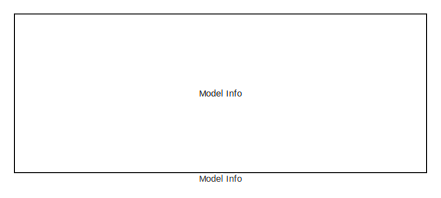
[diagram: root canvas - part 1/3, top center region]
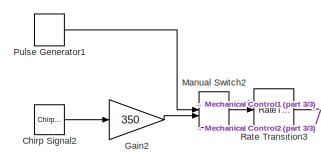
[diagram: root canvas - part 2/3, middle left region]
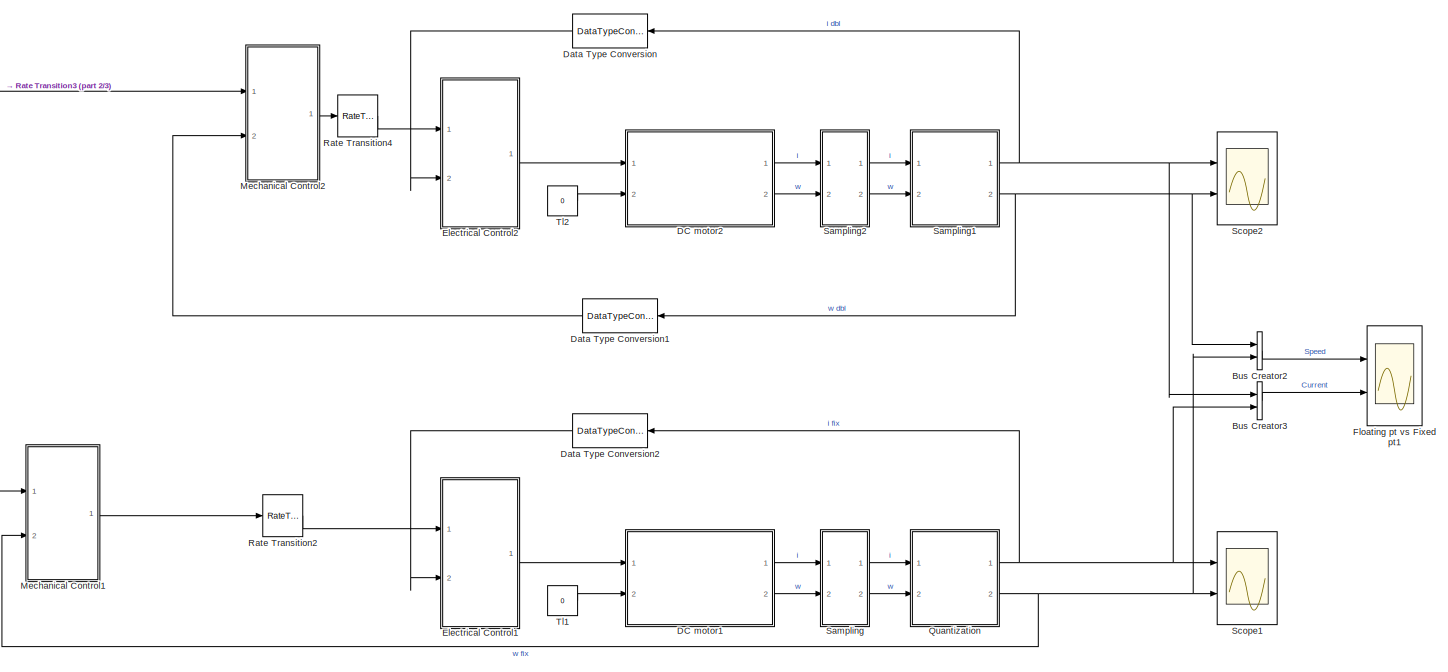
[diagram: root canvas - part 3/3, full width, middle band]
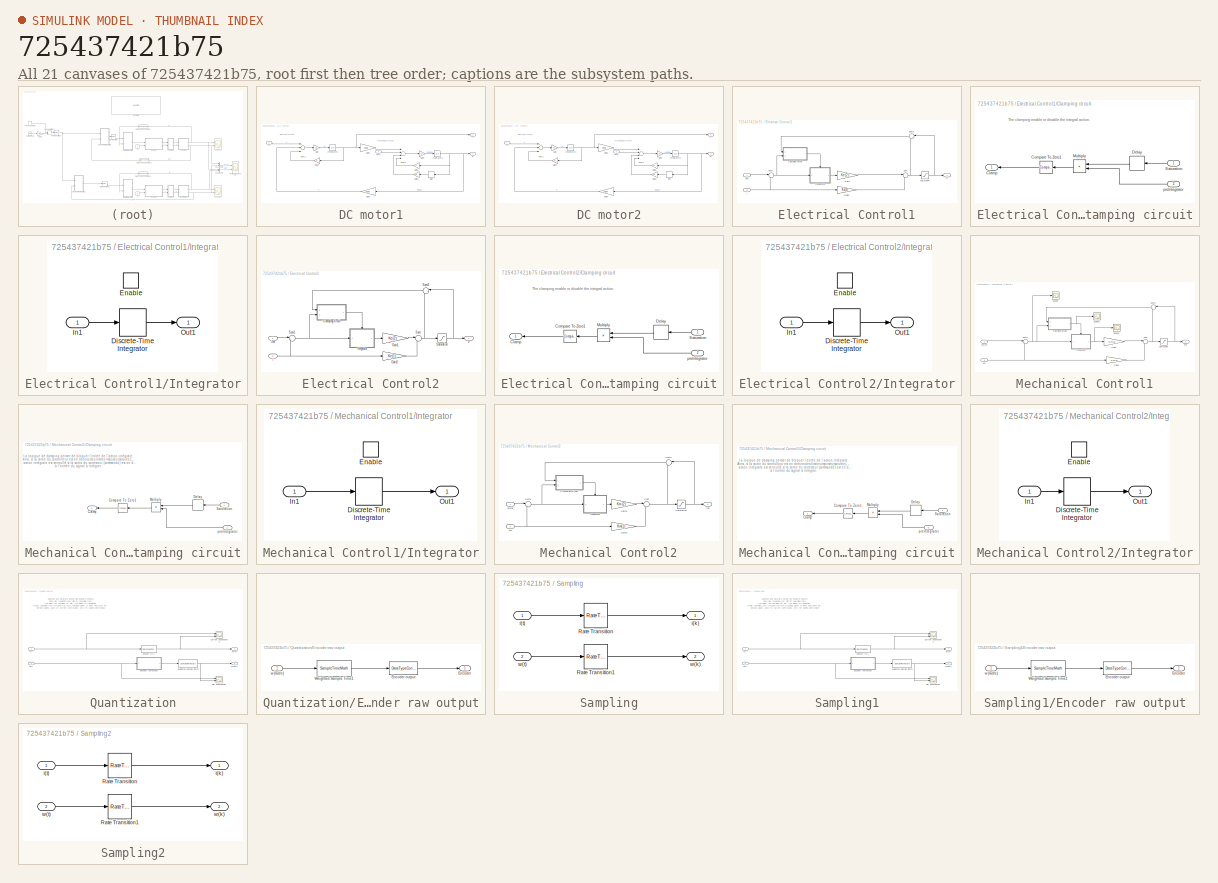
[diagram: thumbnail index - all 21 canvases of the model, root first then tree order]
MODEL slx_725437421b75
KIND model
CONFIG AbsTol = auto
CONFIG EnableMultiTasking = off
CONFIG FixedStep = auto
CONFIG MaxStep = Ts
CONFIG MinStep = auto
CONFIG RelTol = 1e-3
CONFIG SampleTimeConstraint = Unconstrained
CONFIG Solver = VariableStepAuto
CONFIG SolverName = VariableStepAuto
CONFIG StartTime = 0.0
CONFIG StopTime = 25
BLOCK [BusCreator] Bus Creator2
  DisplayOption = bar
  InheritFromInputs = on
  Inputs = 2
  Ports = [2, 1]
BLOCK [BusCreator] Bus Creator3
  DisplayOption = bar
  InheritFromInputs = on
  Inputs = 2
  Ports = [2, 1]
BLOCK [Reference] Chirp Signal2  REF=simulink/Sources/Chirp Signal
  Ports = [0, 1]
  SourceBlock = simulink/Sources/Chirp Signal
  SourceProductBaseCode = SL
  SourceProductName = Simulink
  SourceType = chirp
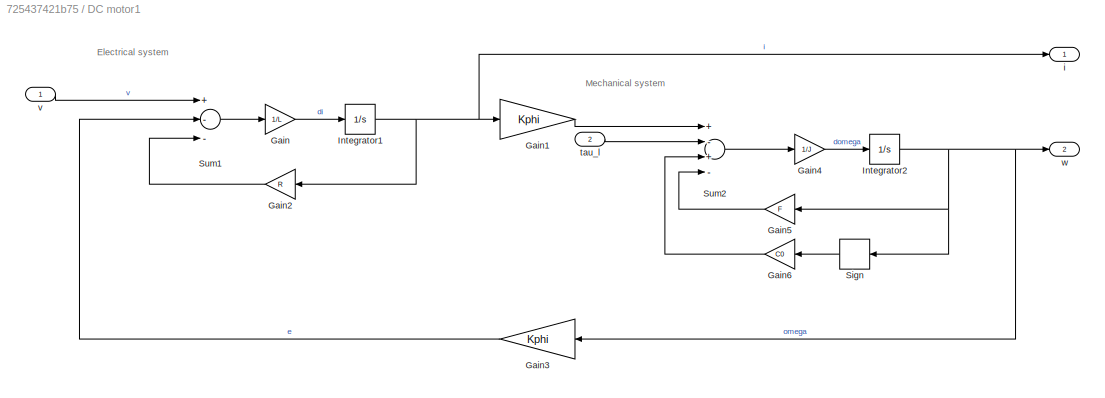
BLOCK [SubSystem] DC motor1
  Ports = [2, 2]
  RequestExecContextInheritance = off
BLOCK [Gain] DC motor1/Gain
  Gain = 1/L
  OutDataTypeStr = Inherit: Inherit via internal rule
  ParamDataTypeStr = Inherit: Inherit via internal rule
  SaturateOnIntegerOverflow = off
BLOCK [Gain] DC motor1/Gain1
  Gain = Kphi
  OutDataTypeStr = Inherit: Inherit via internal rule
  ParamDataTypeStr = Inherit: Inherit via internal rule
  SaturateOnIntegerOverflow = off
BLOCK [Gain] DC motor1/Gain2
  Gain = R
  OutDataTypeStr = Inherit: Inherit via internal rule
  ParamDataTypeStr = Inherit: Inherit via internal rule
  SaturateOnIntegerOverflow = off
BLOCK [Gain] DC motor1/Gain3  
  Gain = Kphi
  OutDataTypeStr = Inherit: Inherit via internal rule
  ParamDataTypeStr = Inherit: Inherit via internal rule
  SaturateOnIntegerOverflow = off
BLOCK [Gain] DC motor1/Gain4
  Gain = 1/J
  OutDataTypeStr = Inherit: Inherit via internal rule
  ParamDataTypeStr = Inherit: Inherit via internal rule
  SaturateOnIntegerOverflow = off
BLOCK [Gain] DC motor1/Gain5
  Gain = F
  OutDataTypeStr = Inherit: Inherit via internal rule
  ParamDataTypeStr = Inherit: Inherit via internal rule
  SaturateOnIntegerOverflow = off
BLOCK [Gain] DC motor1/Gain6
  Gain = C0
  OutDataTypeStr = Inherit: Inherit via internal rule
  ParamDataTypeStr = Inherit: Inherit via internal rule
  SaturateOnIntegerOverflow = off
BLOCK [Integrator] DC motor1/Integrator1
  Ports = [1, 1]
BLOCK [Integrator] DC motor1/Integrator2
  Ports = [1, 1]
BLOCK [Signum] DC motor1/Sign
BLOCK [Sum] DC motor1/Sum1
  InputSameDT = off
  Inputs = +--
  OutDataTypeStr = Inherit: Inherit via internal rule
  Ports = [3, 1]
  SaturateOnIntegerOverflow = off
BLOCK [Sum] DC motor1/Sum2
  InputSameDT = off
  Inputs = +-+-
  OutDataTypeStr = Inherit: Inherit via internal rule
  Ports = [4, 1]
  SaturateOnIntegerOverflow = off
BLOCK [Outport] DC motor1/i
  IconDisplay = Port number
BLOCK [Inport] DC motor1/tau_l
  IconDisplay = Port number
  Port = 2
BLOCK [Inport] DC motor1/v
  IconDisplay = Port number
  SampleTime = 0
BLOCK [Outport] DC motor1/w
  IconDisplay = Port number
  Port = 2
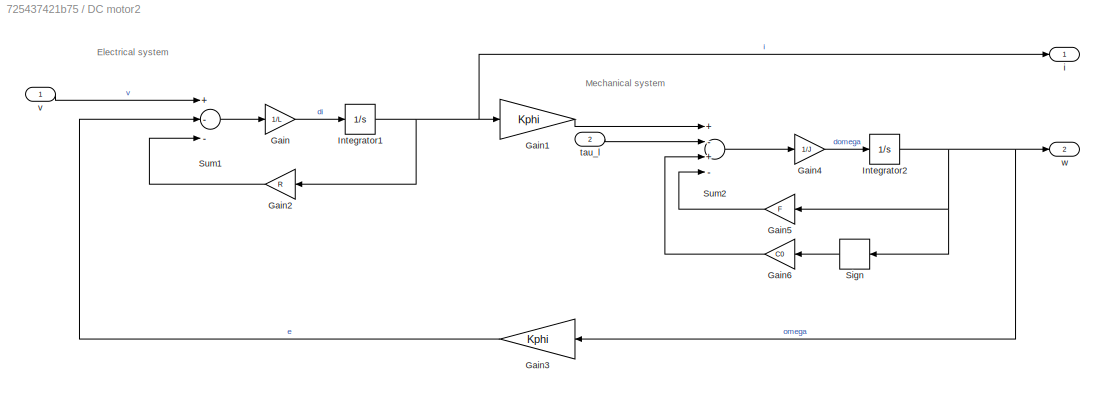
BLOCK [SubSystem] DC motor2
  Ports = [2, 2]
  RequestExecContextInheritance = off
BLOCK [Gain] DC motor2/Gain
  Gain = 1/L
  OutDataTypeStr = Inherit: Inherit via internal rule
  ParamDataTypeStr = Inherit: Inherit via internal rule
  SaturateOnIntegerOverflow = off
BLOCK [Gain] DC motor2/Gain1
  Gain = Kphi
  OutDataTypeStr = Inherit: Inherit via internal rule
  ParamDataTypeStr = Inherit: Inherit via internal rule
  SaturateOnIntegerOverflow = off
BLOCK [Gain] DC motor2/Gain2
  Gain = R
  OutDataTypeStr = Inherit: Inherit via internal rule
  ParamDataTypeStr = Inherit: Inherit via internal rule
  SaturateOnIntegerOverflow = off
BLOCK [Gain] DC motor2/Gain3  
  Gain = Kphi
  OutDataTypeStr = Inherit: Inherit via internal rule
  ParamDataTypeStr = Inherit: Inherit via internal rule
  SaturateOnIntegerOverflow = off
BLOCK [Gain] DC motor2/Gain4
  Gain = 1/J
  OutDataTypeStr = Inherit: Inherit via internal rule
  ParamDataTypeStr = Inherit: Inherit via internal rule
  SaturateOnIntegerOverflow = off
BLOCK [Gain] DC motor2/Gain5
  Gain = F
  OutDataTypeStr = Inherit: Inherit via internal rule
  ParamDataTypeStr = Inherit: Inherit via internal rule
  SaturateOnIntegerOverflow = off
BLOCK [Gain] DC motor2/Gain6
  Gain = C0
  OutDataTypeStr = Inherit: Inherit via internal rule
  ParamDataTypeStr = Inherit: Inherit via internal rule
  SaturateOnIntegerOverflow = off
BLOCK [Integrator] DC motor2/Integrator1
  Ports = [1, 1]
BLOCK [Integrator] DC motor2/Integrator2
  Ports = [1, 1]
BLOCK [Signum] DC motor2/Sign
BLOCK [Sum] DC motor2/Sum1
  InputSameDT = off
  Inputs = +--
  OutDataTypeStr = Inherit: Inherit via internal rule
  Ports = [3, 1]
  SaturateOnIntegerOverflow = off
BLOCK [Sum] DC motor2/Sum2
  InputSameDT = off
  Inputs = +-+-
  OutDataTypeStr = Inherit: Inherit via internal rule
  Ports = [4, 1]
  SaturateOnIntegerOverflow = off
BLOCK [Outport] DC motor2/i
  IconDisplay = Port number
BLOCK [Inport] DC motor2/tau_l
  IconDisplay = Port number
  Port = 2
BLOCK [Inport] DC motor2/v
  IconDisplay = Port number
  SampleTime = 0
BLOCK [Outport] DC motor2/w
  IconDisplay = Port number
  Port = 2
BLOCK [DataTypeConversion] Data Type Conversion
  OutDataTypeStr = double
  RndMeth = Floor
  SaturateOnIntegerOverflow = off
BLOCK [DataTypeConversion] Data Type Conversion1
  OutDataTypeStr = double
  RndMeth = Floor
  SaturateOnIntegerOverflow = off
BLOCK [DataTypeConversion] Data Type Conversion2
  RndMeth = Floor
  SaturateOnIntegerOverflow = off
BLOCK [SubSystem] Electrical Control1
  Ports = [2, 1]
  RequestExecContextInheritance = off
BLOCK [SubSystem] Electrical Control1/Clamping circuit
  Ports = [2, 1]
  RequestExecContextInheritance = off
BLOCK [Outport] Electrical Control1/Clamping circuit/Clamp
  DisableCoverage = on
  IconDisplay = Port number
BLOCK [Reference] Electrical Control1/Clamping circuit/Compare To Zero1  REF=simulink/Logic and Bit
Operations/Compare
To Zero
  Ports = [1, 1]
  SourceBlock = simulink/Logic and Bit\nOperations/Compare\nTo Zero
  SourceProductBaseCode = SL
  SourceProductName = Simulink
  SourceType = Compare To Zero
BLOCK [Delay] Electrical Control1/Clamping circuit/Delay
  DelayLength = 1
  InitialCondition = 0
  InputPortMap = u0
  Ports = [1, 1]
BLOCK [Product] Electrical Control1/Clamping circuit/Multiply
  InputSameDT = off
  OutDataTypeStr = Inherit: Inherit via internal rule
  Ports = [2, 1]
  RndMeth = Floor
  SaturateOnIntegerOverflow = off
BLOCK [Inport] Electrical Control1/Clamping circuit/Saturation
  DisableCoverage = on
  IconDisplay = Port number
BLOCK [Inport] Electrical Control1/Clamping circuit/preIntegrator
  DisableCoverage = on
  IconDisplay = Port number
  Port = 2
  VarSizeSig = No
BLOCK [Gain] Electrical Control1/Gain1
  Gain = Ke(2)
  OutDataTypeStr = fixdt(1,16)
  OutMax = [2*Vmax]
  OutMin = [2*Vmin]
  ParamDataTypeStr = Inherit: Inherit via internal rule
  SaturateOnIntegerOverflow = off
BLOCK [Gain] Electrical Control1/Gain2
  Gain = Ke(1)
  OutDataTypeStr = fixdt(1,16)
  OutMax = [2*Vmax]
  OutMin = [2*Vmin]
  ParamDataTypeStr = Inherit: Inherit via internal rule
  SaturateOnIntegerOverflow = off
BLOCK [SubSystem] Electrical Control1/Integrator
  Ports = [1, 1, 1]
  RequestExecContextInheritance = off
BLOCK [DiscreteIntegrator] Electrical Control1/Integrator/Discrete-Time Integrator
  ICPrevOutput = DiscIntNeverNeededParam
  ICPrevScaledInput = DiscIntNeverNeededParam
  InitialConditionSetting = Auto
  OutDataTypeStr = fixdt(1,32)
  OutMax = [2*Imax]
  OutMin = [2*Imin]
  Ports = [1, 1]
  SampleTime = Ts
BLOCK [EnablePort] Electrical Control1/Integrator/Enable
  Ports = []
BLOCK [Inport] Electrical Control1/Integrator/In1
  IconDisplay = Port number
BLOCK [Outport] Electrical Control1/Integrator/Out1
  IconDisplay = Port number
BLOCK [Saturate] Electrical Control1/Saturation
  InputPortMap = u0
  LowerLimit = Vmin
  Ports = [1, 1]
  UpperLimit = Vmax
BLOCK [Sum] Electrical Control1/Sum
  IconShape = round
  InputSameDT = off
  Inputs = |--
  OutDataTypeStr = Inherit: Inherit via internal rule
  Ports = [2, 1]
  SaturateOnIntegerOverflow = off
BLOCK [Sum] Electrical Control1/Sum1
  IconShape = round
  InputSameDT = off
  Inputs = |+-
  OutDataTypeStr = fixdt(1,16)
  OutMax = [2*Imax]
  OutMin = [2*Imin]
  Ports = [2, 1]
  SaturateOnIntegerOverflow = off
BLOCK [Sum] Electrical Control1/Sum2
  AccumDataTypeStr = Inherit: Same as first input
  IconShape = round
  InputSameDT = off
  Inputs = |-+
  OutDataTypeStr = Inherit: Same as accumulator
  Ports = [2, 1]
  SaturateOnIntegerOverflow = off
BLOCK [Inport] Electrical Control1/i
  IconDisplay = Port number
  Port = 2
BLOCK [Inport] Electrical Control1/iref
  IconDisplay = Port number
BLOCK [Outport] Electrical Control1/v
  IconDisplay = Port number
BLOCK [SubSystem] Electrical Control2
  Ports = [2, 1]
  RequestExecContextInheritance = off
BLOCK [SubSystem] Electrical Control2/Clamping circuit
  Ports = [2, 1]
  RequestExecContextInheritance = off
BLOCK [Outport] Electrical Control2/Clamping circuit/Clamp
  DisableCoverage = on
  IconDisplay = Port number
BLOCK [Reference] Electrical Control2/Clamping circuit/Compare To Zero1  REF=simulink/Logic and Bit
Operations/Compare
To Zero
  Ports = [1, 1]
  SourceBlock = simulink/Logic and Bit\nOperations/Compare\nTo Zero
  SourceProductBaseCode = SL
  SourceProductName = Simulink
  SourceType = Compare To Zero
BLOCK [Delay] Electrical Control2/Clamping circuit/Delay
  DelayLength = 1
  InitialCondition = 0
  InputPortMap = u0
  Ports = [1, 1]
BLOCK [Product] Electrical Control2/Clamping circuit/Multiply
  InputSameDT = off
  OutDataTypeStr = Inherit: Inherit via internal rule
  Ports = [2, 1]
  RndMeth = Floor
  SaturateOnIntegerOverflow = off
BLOCK [Inport] Electrical Control2/Clamping circuit/Saturation
  DisableCoverage = on
  IconDisplay = Port number
BLOCK [Inport] Electrical Control2/Clamping circuit/preIntegrator
  DisableCoverage = on
  IconDisplay = Port number
  Port = 2
  VarSizeSig = No
BLOCK [Gain] Electrical Control2/Gain1
  Gain = Ke(2)
  OutDataTypeStr = Inherit: Inherit via internal rule
  ParamDataTypeStr = Inherit: Inherit via internal rule
  SaturateOnIntegerOverflow = off
BLOCK [Gain] Electrical Control2/Gain2
  Gain = Ke(1)
  OutDataTypeStr = Inherit: Inherit via internal rule
  ParamDataTypeStr = Inherit: Inherit via internal rule
  SaturateOnIntegerOverflow = off
BLOCK [SubSystem] Electrical Control2/Integrator
  Ports = [1, 1, 1]
  RequestExecContextInheritance = off
BLOCK [DiscreteIntegrator] Electrical Control2/Integrator/Discrete-Time Integrator
  ICPrevOutput = DiscIntNeverNeededParam
  ICPrevScaledInput = DiscIntNeverNeededParam
  InitialConditionSetting = Auto
  Ports = [1, 1]
  SampleTime = Ts
BLOCK [EnablePort] Electrical Control2/Integrator/Enable
  Ports = []
BLOCK [Inport] Electrical Control2/Integrator/In1
  IconDisplay = Port number
BLOCK [Outport] Electrical Control2/Integrator/Out1
  IconDisplay = Port number
BLOCK [Saturate] Electrical Control2/Saturation
  InputPortMap = u0
  LowerLimit = Vmin
  Ports = [1, 1]
  UpperLimit = Vmax
BLOCK [Sum] Electrical Control2/Sum
  IconShape = round
  InputSameDT = off
  Inputs = |--
  OutDataTypeStr = Inherit: Inherit via internal rule
  Ports = [2, 1]
  SaturateOnIntegerOverflow = off
BLOCK [Sum] Electrical Control2/Sum1
  IconShape = round
  InputSameDT = off
  Inputs = |+-
  OutDataTypeStr = Inherit: Inherit via internal rule
  Ports = [2, 1]
  SaturateOnIntegerOverflow = off
BLOCK [Sum] Electrical Control2/Sum2
  AccumDataTypeStr = Inherit: Same as first input
  IconShape = round
  InputSameDT = off
  Inputs = |-+
  OutDataTypeStr = Inherit: Same as accumulator
  Ports = [2, 1]
  SaturateOnIntegerOverflow = off
BLOCK [Inport] Electrical Control2/i
  IconDisplay = Port number
  Port = 2
BLOCK [Inport] Electrical Control2/iref
  IconDisplay = Port number
BLOCK [Outport] Electrical Control2/v
  IconDisplay = Port number
BLOCK [Scope] Floating pt vs Fixed pt1
  Floating = off
  NumInputPorts = 2
  Ports = [2]
  ScopeSpecificationString = Simulink.scopes.TimeScopeBlockCfg('CurrentConfiguration', extmgr.ConfigurationSet(extmgr.Configuration('Core','General UI',true),extmgr.Configuration('Core','Source UI',true),extmgr.Configuration('Sources','WiredSimulink',true,'DataLoggingVariableName','ScopeData5'),extmgr.Configuration('Visuals','Time Domain',true,'SerializedDisplays',{struct('MinYLimReal','-540.35394','MaxYLimReal','464.95571','...<+2054ch>
BLOCK [Gain] Gain2
  Gain = 350
  OutDataTypeStr = Inherit: Inherit via back propagation
  ParamDataTypeStr = Inherit: Inherit via internal rule
  SaturateOnIntegerOverflow = off
BLOCK [ManualSwitch] Manual Switch2
BLOCK [SubSystem] Mechanical Control1
  Ports = [2, 1]
  RequestExecContextInheritance = off
BLOCK [SubSystem] Mechanical Control1/Clamping circuit
  Ports = [2, 1]
  RequestExecContextInheritance = off
BLOCK [Outport] Mechanical Control1/Clamping circuit/Clamp
  DisableCoverage = on
  IconDisplay = Port number
BLOCK [Reference] Mechanical Control1/Clamping circuit/Compare To Zero1  REF=simulink/Logic and Bit
Operations/Compare
To Zero
  Ports = [1, 1]
  SourceBlock = simulink/Logic and Bit\nOperations/Compare\nTo Zero
  SourceProductBaseCode = SL
  SourceProductName = Simulink
  SourceType = Compare To Zero
BLOCK [Delay] Mechanical Control1/Clamping circuit/Delay
  DelayLength = 1
  InitialCondition = 0
  InputPortMap = u0
  Ports = [1, 1]
  SampleTime = TsMeca
BLOCK [Product] Mechanical Control1/Clamping circuit/Multiply
  InputSameDT = off
  OutDataTypeStr = Inherit: Inherit via internal rule
  Ports = [2, 1]
  RndMeth = Floor
  SaturateOnIntegerOverflow = off
BLOCK [Inport] Mechanical Control1/Clamping circuit/Saturation
  DisableCoverage = on
  IconDisplay = Port number
BLOCK [Inport] Mechanical Control1/Clamping circuit/preIntegrator
  DisableCoverage = on
  IconDisplay = Port number
  Port = 2
  VarSizeSig = No
BLOCK [Gain] Mechanical Control1/Gain1
  Gain = Km(2)
  OutDataTypeStr = fixdt(1,16)
  OutMax = [2*Imax]
  OutMin = [-2*Imax]
  ParamDataTypeStr = Inherit: Inherit via internal rule
  SaturateOnIntegerOverflow = off
BLOCK [Gain] Mechanical Control1/Gain2
  Gain = Km(1)
  OutDataTypeStr = fixdt(1,16)
  OutMax = [2*Imax]
  OutMin = [-2*Imax]
  ParamDataTypeStr = Inherit: Inherit via internal rule
  SaturateOnIntegerOverflow = off
BLOCK [SubSystem] Mechanical Control1/Integrator
  Ports = [1, 1, 1]
  RequestExecContextInheritance = off
BLOCK [DiscreteIntegrator] Mechanical Control1/Integrator/Discrete-Time Integrator
  ICPrevOutput = DiscIntNeverNeededParam
  ICPrevScaledInput = DiscIntNeverNeededParam
  InitialConditionSetting = Auto
  OutDataTypeStr = fixdt(1,32)
  OutMax = [2*Ommax]
  OutMin = [2*Ommin]
  Ports = [1, 1]
  SampleTime = TsMeca
BLOCK [EnablePort] Mechanical Control1/Integrator/Enable
  Ports = []
BLOCK [Inport] Mechanical Control1/Integrator/In1
  IconDisplay = Port number
BLOCK [Outport] Mechanical Control1/Integrator/Out1
  IconDisplay = Port number
BLOCK [Saturate] Mechanical Control1/Saturation
  InputPortMap = u0
  LowerLimit = Imin
  Ports = [1, 1]
  UpperLimit = Imax
BLOCK [Scope] Mechanical Control1/Scope
  Floating = off
  NumInputPorts = 1
  Ports = [1]
  ScopeSpecificationString = Simulink.scopes.TimeScopeBlockCfg('CurrentConfiguration', extmgr.ConfigurationSet(extmgr.Configuration('Core','General UI',true),extmgr.Configuration('Core','Source UI',true),extmgr.Configuration('Sources','WiredSimulink',true,'DataLoggingVariableName','ScopeData2'),extmgr.Configuration('Visuals','Time Domain',true,'SerializedDisplays',{struct('MinYLimReal','-251.19531','MaxYLimReal','250.13281','...<+1428ch>
BLOCK [Scope] Mechanical Control1/Scope1
  Floating = off
  NumInputPorts = 1
  Ports = [1]
  ScopeSpecificationString = Simulink.scopes.TimeScopeBlockCfg('CurrentConfiguration', extmgr.ConfigurationSet(extmgr.Configuration('Core','General UI',true),extmgr.Configuration('Core','Source UI',true),extmgr.Configuration('Sources','WiredSimulink',true,'DataLoggingVariableName','ScopeData3'),extmgr.Configuration('Visuals','Time Domain',true,'SerializedDisplays',{struct('MinYLimReal','-6.72581','MaxYLimReal','37.52422','YLa...<+1418ch>
BLOCK [Scope] Mechanical Control1/Scope2
  Floating = off
  NumInputPorts = 1
  Ports = [1]
  ScopeSpecificationString = Simulink.scopes.TimeScopeBlockCfg('CurrentConfiguration', extmgr.ConfigurationSet(extmgr.Configuration('Core','General UI',true),extmgr.Configuration('Core','Source UI',true),extmgr.Configuration('Sources','WiredSimulink',true,'DataLoggingVariableName','ScopeData4'),extmgr.Configuration('Visuals','Time Domain',true,'SerializedDisplays',{struct('MinYLimReal','0.9','MaxYLimReal','1.1','YLabelReal','...<+1380ch>
BLOCK [Sum] Mechanical Control1/Sum
  IconShape = round
  InputSameDT = off
  Inputs = |--
  OutDataTypeStr = Inherit: Inherit via internal rule
  Ports = [2, 1]
  SaturateOnIntegerOverflow = off
BLOCK [Sum] Mechanical Control1/Sum1
  IconShape = round
  InputSameDT = off
  Inputs = |+-
  OutDataTypeStr = fixdt(1,16)
  OutMax = [2*Ommax]
  OutMin = [2*Ommin]
  Ports = [2, 1]
  SaturateOnIntegerOverflow = off
BLOCK [Sum] Mechanical Control1/Sum2
  AccumDataTypeStr = Inherit: Same as first input
  IconShape = round
  InputSameDT = off
  Inputs = |-+
  OutDataTypeStr = Inherit: Same as accumulator
  Ports = [2, 1]
  SaturateOnIntegerOverflow = off
BLOCK [Outport] Mechanical Control1/iref
  IconDisplay = Port number
BLOCK [Inport] Mechanical Control1/om
  IconDisplay = Port number
  Port = 2
BLOCK [Inport] Mechanical Control1/omref
  IconDisplay = Port number
  OutDataTypeStr = fixdt(1,16)
  OutMax = [Ommax]
  OutMin = [Ommin]
BLOCK [SubSystem] Mechanical Control2
  Ports = [2, 1]
  RequestExecContextInheritance = off
BLOCK [SubSystem] Mechanical Control2/Clamping circuit
  Ports = [2, 1]
  RequestExecContextInheritance = off
BLOCK [Outport] Mechanical Control2/Clamping circuit/Clamp
  DisableCoverage = on
  IconDisplay = Port number
BLOCK [Reference] Mechanical Control2/Clamping circuit/Compare To Zero1  REF=simulink/Logic and Bit
Operations/Compare
To Zero
  Ports = [1, 1]
  SourceBlock = simulink/Logic and Bit\nOperations/Compare\nTo Zero
  SourceProductBaseCode = SL
  SourceProductName = Simulink
  SourceType = Compare To Zero
BLOCK [Delay] Mechanical Control2/Clamping circuit/Delay
  DelayLength = 1
  InitialCondition = 0
  InputPortMap = u0
  Ports = [1, 1]
  SampleTime = TsMeca
BLOCK [Product] Mechanical Control2/Clamping circuit/Multiply
  InputSameDT = off
  OutDataTypeStr = Inherit: Inherit via internal rule
  Ports = [2, 1]
  RndMeth = Floor
  SaturateOnIntegerOverflow = off
BLOCK [Inport] Mechanical Control2/Clamping circuit/Saturation
  DisableCoverage = on
  IconDisplay = Port number
BLOCK [Inport] Mechanical Control2/Clamping circuit/preIntegrator
  DisableCoverage = on
  IconDisplay = Port number
  Port = 2
  VarSizeSig = No
BLOCK [Gain] Mechanical Control2/Gain1
  Gain = Km(2)
  OutDataTypeStr = Inherit: Inherit via internal rule
  ParamDataTypeStr = Inherit: Inherit via internal rule
  SaturateOnIntegerOverflow = off
BLOCK [Gain] Mechanical Control2/Gain2
  Gain = Km(1)
  OutDataTypeStr = Inherit: Inherit via internal rule
  ParamDataTypeStr = Inherit: Inherit via internal rule
  SaturateOnIntegerOverflow = off
BLOCK [SubSystem] Mechanical Control2/Integrator
  Ports = [1, 1, 1]
  RequestExecContextInheritance = off
BLOCK [DiscreteIntegrator] Mechanical Control2/Integrator/Discrete-Time Integrator
  ICPrevOutput = DiscIntNeverNeededParam
  ICPrevScaledInput = DiscIntNeverNeededParam
  InitialConditionSetting = Auto
  Ports = [1, 1]
  SampleTime = TsMeca
BLOCK [EnablePort] Mechanical Control2/Integrator/Enable
  Ports = []
BLOCK [Inport] Mechanical Control2/Integrator/In1
  IconDisplay = Port number
BLOCK [Outport] Mechanical Control2/Integrator/Out1
  IconDisplay = Port number
BLOCK [Saturate] Mechanical Control2/Saturation
  InputPortMap = u0
  LowerLimit = Imin
  Ports = [1, 1]
  UpperLimit = Imax
BLOCK [Sum] Mechanical Control2/Sum
  IconShape = round
  InputSameDT = off
  Inputs = |--
  OutDataTypeStr = Inherit: Inherit via internal rule
  Ports = [2, 1]
  SaturateOnIntegerOverflow = off
BLOCK [Sum] Mechanical Control2/Sum1
  IconShape = round
  InputSameDT = off
  Inputs = |+-
  OutDataTypeStr = Inherit: Inherit via internal rule
  Ports = [2, 1]
  SaturateOnIntegerOverflow = off
BLOCK [Sum] Mechanical Control2/Sum2
  AccumDataTypeStr = Inherit: Same as first input
  IconShape = round
  InputSameDT = off
  Inputs = |-+
  OutDataTypeStr = Inherit: Same as accumulator
  Ports = [2, 1]
  SaturateOnIntegerOverflow = off
BLOCK [Outport] Mechanical Control2/iref
  IconDisplay = Port number
BLOCK [Inport] Mechanical Control2/om
  IconDisplay = Port number
  Port = 2
BLOCK [Inport] Mechanical Control2/omref
  IconDisplay = Port number
BLOCK [Reference] Model Info  REF=simulink/Model-Wide
Utilities/Model Info
  Ports = []
  SourceBlock = simulink/Model-Wide\nUtilities/Model Info
  SourceProductBaseCode = SL
  SourceProductName = Simulink
  SourceType = CMBlock
BLOCK [DiscretePulseGenerator] Pulse Generator1
  Amplitude = 200
  PhaseDelay = 0.5
  Ports = [0, 1]
  PulseType = Time based
  PulseWidth = 50
  SampleTime = -1
BLOCK [SubSystem] Quantization
  Ports = [2, 2]
  RequestExecContextInheritance = off
BLOCK [DataTypeConversion] Quantization/Convert to A
  LockScale = on
  OutDataTypeStr = fixdt(1,16,4.4/32768,0)
  RndMeth = Floor
BLOCK [Scope] Quantization/Current quantization
  Floating = off
  NumInputPorts = 2
  Ports = [2]
  ScopeSpecificationString = Simulink.scopes.TimeScopeBlockCfg('CurrentConfiguration', extmgr.ConfigurationSet(extmgr.Configuration('Core','General UI',true),extmgr.Configuration('Core','Source UI',true),extmgr.Configuration('Sources','WiredSimulink',true,'DataLoggingVariableName','ScopeData1'),extmgr.Configuration('Visuals','Time Domain',true,'SerializedDisplays',{struct('MinYLimReal','-4.53222','MaxYLimReal','18.09714','YLa...<+1513ch>
BLOCK [SubSystem] Quantization/Encoder raw output
  Ports = [1, 1]
  RequestExecContextInheritance = off
BLOCK [Outport] Quantization/Encoder raw output/Encoder
  IconDisplay = Port number
BLOCK [DataTypeConversion] Quantization/Encoder raw output/Encoder output
  LockScale = on
  OutDataTypeStr = int16
  RndMeth = Floor
BLOCK [SampleTimeMath] Quantization/Encoder raw output/Weighted Sample Time1
  TsampMathOp = *
  weightValue = 1000/pi
BLOCK [Inport] Quantization/Encoder raw output/w (rad//s)
  IconDisplay = Port number
BLOCK [Scope] Quantization/QEI quantization
  Floating = off
  NumInputPorts = 2
  Ports = [2]
  ScopeSpecificationString = Simulink.scopes.TimeScopeBlockCfg('CurrentConfiguration', extmgr.ConfigurationSet(extmgr.Configuration('Core','General UI',true),extmgr.Configuration('Core','Source UI',true),extmgr.Configuration('Sources','WiredSimulink',true,'DataLoggingVariableName','ScopeData2'),extmgr.Configuration('Visuals','Time Domain',true,'SerializedDisplays',{struct('MinYLimReal','-26.77669','MaxYLimReal','240.99021','Y...<+1530ch>
BLOCK [SampleTimeMath] Quantization/Weighted Sample Time1
  TsampMathImp = Offline Scaling Adjustment
  TsampMathOp = /
  weightValue = 1000/pi
BLOCK [Inport] Quantization/i(t)
  IconDisplay = Port number
BLOCK [Outport] Quantization/q(i(k))
  IconDisplay = Port number
BLOCK [Outport] Quantization/q(w(k))
  IconDisplay = Port number
  Port = 2
BLOCK [Inport] Quantization/w(t)
  IconDisplay = Port number
  Port = 2
BLOCK [RateTransition] Rate Transition2
  Deterministic = off
BLOCK [RateTransition] Rate Transition3
  Deterministic = off
BLOCK [RateTransition] Rate Transition4
  Deterministic = off
BLOCK [SubSystem] Sampling
  Ports = [2, 2]
  RequestExecContextInheritance = off
BLOCK [RateTransition] Sampling/Rate Transition
  Deterministic = off
  OutPortSampleTime = Ts
BLOCK [RateTransition] Sampling/Rate Transition1
  Deterministic = off
  OutPortSampleTime = TsMeca
BLOCK [Outport] Sampling/i(k)
  IconDisplay = Port number
BLOCK [Inport] Sampling/i(t)
  IconDisplay = Port number
BLOCK [Outport] Sampling/w(k)
  IconDisplay = Port number
  Port = 2
BLOCK [Inport] Sampling/w(t)
  IconDisplay = Port number
  Port = 2
BLOCK [SubSystem] Sampling1
  Ports = [2, 2]
  RequestExecContextInheritance = off
BLOCK [DataTypeConversion] Sampling1/Convert to A
  LockScale = on
  OutDataTypeStr = fixdt(1,16,4.4/32768,0)
  RndMeth = Floor
BLOCK [Scope] Sampling1/Current quantization
  Floating = off
  NumInputPorts = 2
  Ports = [2]
  ScopeSpecificationString = Simulink.scopes.TimeScopeBlockCfg('CurrentConfiguration', extmgr.ConfigurationSet(extmgr.Configuration('Core','General UI',true),extmgr.Configuration('Core','Source UI',true),extmgr.Configuration('Sources','WiredSimulink',true,'DataLoggingVariableName','ScopeData1'),extmgr.Configuration('Visuals','Time Domain',true,'SerializedDisplays',{struct('MinYLimReal','-4.53222','MaxYLimReal','18.09714','YLa...<+1513ch>
BLOCK [SubSystem] Sampling1/Encoder raw output
  Ports = [1, 1]
  RequestExecContextInheritance = off
BLOCK [Outport] Sampling1/Encoder raw output/Encoder
  IconDisplay = Port number
BLOCK [DataTypeConversion] Sampling1/Encoder raw output/Encoder output
  LockScale = on
  OutDataTypeStr = int16
  RndMeth = Floor
BLOCK [SampleTimeMath] Sampling1/Encoder raw output/Weighted Sample Time1
  TsampMathOp = *
  weightValue = 1000/pi
BLOCK [Inport] Sampling1/Encoder raw output/w (rad//s)
  IconDisplay = Port number
BLOCK [Scope] Sampling1/QEI quantization
  Floating = off
  NumInputPorts = 2
  Ports = [2]
  ScopeSpecificationString = Simulink.scopes.TimeScopeBlockCfg('CurrentConfiguration', extmgr.ConfigurationSet(extmgr.Configuration('Core','General UI',true),extmgr.Configuration('Core','Source UI',true),extmgr.Configuration('Sources','WiredSimulink',true,'DataLoggingVariableName','ScopeData2'),extmgr.Configuration('Visuals','Time Domain',true,'SerializedDisplays',{struct('MinYLimReal','-26.77669','MaxYLimReal','240.99021','Y...<+1530ch>
BLOCK [SampleTimeMath] Sampling1/Weighted Sample Time1
  TsampMathImp = Offline Scaling Adjustment
  TsampMathOp = /
  weightValue = 1000/pi
BLOCK [Inport] Sampling1/i(t)
  IconDisplay = Port number
BLOCK [Outport] Sampling1/q(i(k))
  IconDisplay = Port number
BLOCK [Outport] Sampling1/q(w(k))
  IconDisplay = Port number
  Port = 2
BLOCK [Inport] Sampling1/w(t)
  IconDisplay = Port number
  Port = 2
BLOCK [SubSystem] Sampling2
  Ports = [2, 2]
  RequestExecContextInheritance = off
BLOCK [RateTransition] Sampling2/Rate Transition
  Deterministic = off
  OutPortSampleTime = Ts
BLOCK [RateTransition] Sampling2/Rate Transition1
  Deterministic = off
  OutPortSampleTime = TsMeca
BLOCK [Outport] Sampling2/i(k)
  IconDisplay = Port number
BLOCK [Inport] Sampling2/i(t)
  IconDisplay = Port number
BLOCK [Outport] Sampling2/w(k)
  IconDisplay = Port number
  Port = 2
BLOCK [Inport] Sampling2/w(t)
  IconDisplay = Port number
  Port = 2
BLOCK [Scope] Scope1
  Floating = off
  NumInputPorts = 2
  Ports = [2]
  ScopeSpecificationString = Simulink.scopes.TimeScopeBlockCfg('CurrentConfiguration', extmgr.ConfigurationSet(extmgr.Configuration('Core','General UI',true),extmgr.Configuration('Core','Source UI',true),extmgr.Configuration('Sources','WiredSimulink',true,'DataLoggingVariableName','ScopeData1'),extmgr.Configuration('Visuals','Time Domain',true,'SerializedDisplays',{struct('MinYLimReal','-5.19861','MaxYLimReal','5.45428','YLab...<+2040ch>
BLOCK [Scope] Scope2
  Floating = off
  NumInputPorts = 2
  Ports = [2]
  ScopeSpecificationString = Simulink.scopes.TimeScopeBlockCfg('CurrentConfiguration', extmgr.ConfigurationSet(extmgr.Configuration('Core','General UI',true),extmgr.Configuration('Core','Source UI',true),extmgr.Configuration('Sources','WiredSimulink',true,'DataLoggingVariableName','ScopeData1'),extmgr.Configuration('Visuals','Time Domain',true,'SerializedDisplays',{struct('MinYLimReal','-5.66771','MaxYLimReal','5.80576','YLab...<+2040ch>
BLOCK [Constant] Tl1
  Value = 0
BLOCK [Constant] Tl2
  Value = 0
ANNOTATION DC motor1: Electrical system
ANNOTATION DC motor1: Mechanical system
ANNOTATION DC motor2: Electrical system
ANNOTATION DC motor2: Mechanical system
ANNOTATION Electrical Control1/Clamping circuit: The clamping enable or disable the integral action.
ANNOTATION Electrical Control2/Clamping circuit: The clamping enable or disable the integral action.
ANNOTATION Mechanical Control1/Clamping circuit: La logique de clamping permet de bloquer l'entée de l'action intégrale. Ainsi, si la sortie du controlleur est en dehors des limites imposés (saturée), alors l'action intégrale du correcteur est verrouyé (clamping). L'action intégrale est verroullé si la sortie du correcteur (commande) est en dehors des saturations et que le signe de cette sortie est égale à l'entrée du signal à intégrer.
ANNOTATION Mechanical Control2/Clamping circuit: La logique de clamping permet de bloquer l'entée de l'action intégrale. Ainsi, si la sortie du controlleur est en dehors des limites imposés (saturée), alors l'action intégrale du correcteur est verrouyé (clamping). L'action intégrale est verroullé si la sortie du correcteur (commande) est en dehors des saturations et que le signe de cette sortie est égale à l'entrée du signal à intégrer.
ANNOTATION Quantization: Quantize and saturate sensor like onboard sensors Note QEI resolution vary with its sampling rate: the lower the sampling for QEI, the higher its resolution. Modify sampling rate (through the rate transition block) of inner and outer loop and see impact on simulation Default values: 50us for current control loop, 2ms for speed control loop
ANNOTATION Sampling1: Quantize and saturate sensor like onboard sensors Note QEI resolution vary with its sampling rate: the lower the sampling for QEI, the higher its resolution. Modify sampling rate (through the rate transition block) of inner and outer loop and see impact on simulation Default values: 50us for current control loop, 2ms for speed control loop
LINE Bus Creator2:1 -> Floating pt vs Fixed pt1:1
LINE Bus Creator3:1 -> Floating pt vs Fixed pt1:2
LINE Chirp Signal2:1 -> Gain2:1
LINE DC motor1/Gain1:1 -> DC motor1/Sum2:1
LINE DC motor1/Gain2:1 -> DC motor1/Sum1:3
LINE DC motor1/Gain3  :1 -> DC motor1/Sum1:2
LINE DC motor1/Gain4:1 -> DC motor1/Integrator2:1
LINE DC motor1/Gain5:1 -> DC motor1/Sum2:4
LINE DC motor1/Gain6:1 -> DC motor1/Sum2:3
LINE DC motor1/Gain:1 -> DC motor1/Integrator1:1
NET DC motor1/Integrator1:1 -> DC motor1/Gain1:1, DC motor1/Gain2:1, DC motor1/i:1
NET DC motor1/Integrator2:1 -> DC motor1/Gain3  :1, DC motor1/Gain5:1, DC motor1/Sign:1, DC motor1/w:1
LINE DC motor1/Sign:1 -> DC motor1/Gain6:1
LINE DC motor1/Sum1:1 -> DC motor1/Gain:1
LINE DC motor1/Sum2:1 -> DC motor1/Gain4:1
LINE DC motor1/tau_l:1 -> DC motor1/Sum2:2
LINE DC motor1/v:1 -> DC motor1/Sum1:1
LINE DC motor1:1 -> Sampling:1
LINE DC motor1:2 -> Sampling:2
LINE DC motor2/Gain1:1 -> DC motor2/Sum2:1
LINE DC motor2/Gain2:1 -> DC motor2/Sum1:3
LINE DC motor2/Gain3  :1 -> DC motor2/Sum1:2
LINE DC motor2/Gain4:1 -> DC motor2/Integrator2:1
LINE DC motor2/Gain5:1 -> DC motor2/Sum2:4
LINE DC motor2/Gain6:1 -> DC motor2/Sum2:3
LINE DC motor2/Gain:1 -> DC motor2/Integrator1:1
NET DC motor2/Integrator1:1 -> DC motor2/Gain1:1, DC motor2/Gain2:1, DC motor2/i:1
NET DC motor2/Integrator2:1 -> DC motor2/Gain3  :1, DC motor2/Gain5:1, DC motor2/Sign:1, DC motor2/w:1
LINE DC motor2/Sign:1 -> DC motor2/Gain6:1
LINE DC motor2/Sum1:1 -> DC motor2/Gain:1
LINE DC motor2/Sum2:1 -> DC motor2/Gain4:1
LINE DC motor2/tau_l:1 -> DC motor2/Sum2:2
LINE DC motor2/v:1 -> DC motor2/Sum1:1
LINE DC motor2:1 -> Sampling2:1
LINE DC motor2:2 -> Sampling2:2
LINE Data Type Conversion1:1 -> Mechanical Control2:2
LINE Data Type Conversion2:1 -> Electrical Control1:2
LINE Data Type Conversion:1 -> Electrical Control2:2
LINE Electrical Control1/Clamping circuit/Compare To Zero1:1 -> Electrical Control1/Clamping circuit/Clamp:1
LINE Electrical Control1/Clamping circuit/Delay:1 -> Electrical Control1/Clamping circuit/Multiply:1
LINE Electrical Control1/Clamping circuit/Multiply:1 -> Electrical Control1/Clamping circuit/Compare To Zero1:1
LINE Electrical Control1/Clamping circuit/Saturation:1 -> Electrical Control1/Clamping circuit/Delay:1
LINE Electrical Control1/Clamping circuit/preIntegrator:1 -> Electrical Control1/Clamping circuit/Multiply:2
LINE Electrical Control1/Clamping circuit:1 -> Electrical Control1/Integrator:enable
LINE Electrical Control1/Gain1:1 -> Electrical Control1/Sum:1
LINE Electrical Control1/Gain2:1 -> Electrical Control1/Sum:2
LINE Electrical Control1/Integrator/Discrete-Time Integrator:1 -> Electrical Control1/Integrator/Out1:1
LINE Electrical Control1/Integrator/In1:1 -> Electrical Control1/Integrator/Discrete-Time Integrator:1
LINE Electrical Control1/Integrator:1 -> Electrical Control1/Gain1:1
NET Electrical Control1/Saturation:1 -> Electrical Control1/Sum2:1, Electrical Control1/v:1
NET Electrical Control1/Sum1:1 -> Electrical Control1/Clamping circuit:2, Electrical Control1/Integrator:1
LINE Electrical Control1/Sum2:1 -> Electrical Control1/Clamping circuit:1
NET Electrical Control1/Sum:1 -> Electrical Control1/Saturation:1, Electrical Control1/Sum2:2
NET Electrical Control1/i:1 -> Electrical Control1/Gain2:1, Electrical Control1/Sum1:2
LINE Electrical Control1/iref:1 -> Electrical Control1/Sum1:1
LINE Electrical Control1:1 -> DC motor1:1
LINE Electrical Control2/Clamping circuit/Compare To Zero1:1 -> Electrical Control2/Clamping circuit/Clamp:1
LINE Electrical Control2/Clamping circuit/Delay:1 -> Electrical Control2/Clamping circuit/Multiply:1
LINE Electrical Control2/Clamping circuit/Multiply:1 -> Electrical Control2/Clamping circuit/Compare To Zero1:1
LINE Electrical Control2/Clamping circuit/Saturation:1 -> Electrical Control2/Clamping circuit/Delay:1
LINE Electrical Control2/Clamping circuit/preIntegrator:1 -> Electrical Control2/Clamping circuit/Multiply:2
LINE Electrical Control2/Clamping circuit:1 -> Electrical Control2/Integrator:enable
LINE Electrical Control2/Gain1:1 -> Electrical Control2/Sum:1
LINE Electrical Control2/Gain2:1 -> Electrical Control2/Sum:2
LINE Electrical Control2/Integrator/Discrete-Time Integrator:1 -> Electrical Control2/Integrator/Out1:1
LINE Electrical Control2/Integrator/In1:1 -> Electrical Control2/Integrator/Discrete-Time Integrator:1
LINE Electrical Control2/Integrator:1 -> Electrical Control2/Gain1:1
NET Electrical Control2/Saturation:1 -> Electrical Control2/Sum2:1, Electrical Control2/v:1
NET Electrical Control2/Sum1:1 -> Electrical Control2/Clamping circuit:2, Electrical Control2/Integrator:1
LINE Electrical Control2/Sum2:1 -> Electrical Control2/Clamping circuit:1
NET Electrical Control2/Sum:1 -> Electrical Control2/Saturation:1, Electrical Control2/Sum2:2
NET Electrical Control2/i:1 -> Electrical Control2/Gain2:1, Electrical Control2/Sum1:2
LINE Electrical Control2/iref:1 -> Electrical Control2/Sum1:1
LINE Electrical Control2:1 -> DC motor2:1
LINE Gain2:1 -> Manual Switch2:2
LINE Manual Switch2:1 -> Rate Transition3:1
LINE Mechanical Control1/Clamping circuit/Compare To Zero1:1 -> Mechanical Control1/Clamping circuit/Clamp:1
LINE Mechanical Control1/Clamping circuit/Delay:1 -> Mechanical Control1/Clamping circuit/Multiply:1
LINE Mechanical Control1/Clamping circuit/Multiply:1 -> Mechanical Control1/Clamping circuit/Compare To Zero1:1
LINE Mechanical Control1/Clamping circuit/Saturation:1 -> Mechanical Control1/Clamping circuit/Delay:1
LINE Mechanical Control1/Clamping circuit/preIntegrator:1 -> Mechanical Control1/Clamping circuit/Multiply:2
NET Mechanical Control1/Clamping circuit:1 -> Mechanical Control1/Integrator:enable, Mechanical Control1/Scope2:1
LINE Mechanical Control1/Gain1:1 -> Mechanical Control1/Sum:1
LINE Mechanical Control1/Gain2:1 -> Mechanical Control1/Sum:2
LINE Mechanical Control1/Integrator/Discrete-Time Integrator:1 -> Mechanical Control1/Integrator/Out1:1
LINE Mechanical Control1/Integrator/In1:1 -> Mechanical Control1/Integrator/Discrete-Time Integrator:1
NET Mechanical Control1/Integrator:1 -> Mechanical Control1/Gain1:1, Mechanical Control1/Scope1:1
NET Mechanical Control1/Saturation:1 -> Mechanical Control1/Sum2:1, Mechanical Control1/iref:1
NET Mechanical Control1/Sum1:1 -> Mechanical Control1/Clamping circuit:2, Mechanical Control1/Integrator:1, Mechanical Control1/Scope:1
LINE Mechanical Control1/Sum2:1 -> Mechanical Control1/Clamping circuit:1
NET Mechanical Control1/Sum:1 -> Mechanical Control1/Saturation:1, Mechanical Control1/Sum2:2
NET Mechanical Control1/om:1 -> Mechanical Control1/Gain2:1, Mechanical Control1/Sum1:2
LINE Mechanical Control1/omref:1 -> Mechanical Control1/Sum1:1
LINE Mechanical Control1:1 -> Rate Transition2:1
LINE Mechanical Control2/Clamping circuit/Compare To Zero1:1 -> Mechanical Control2/Clamping circuit/Clamp:1
LINE Mechanical Control2/Clamping circuit/Delay:1 -> Mechanical Control2/Clamping circuit/Multiply:1
LINE Mechanical Control2/Clamping circuit/Multiply:1 -> Mechanical Control2/Clamping circuit/Compare To Zero1:1
LINE Mechanical Control2/Clamping circuit/Saturation:1 -> Mechanical Control2/Clamping circuit/Delay:1
LINE Mechanical Control2/Clamping circuit/preIntegrator:1 -> Mechanical Control2/Clamping circuit/Multiply:2
LINE Mechanical Control2/Clamping circuit:1 -> Mechanical Control2/Integrator:enable
LINE Mechanical Control2/Gain1:1 -> Mechanical Control2/Sum:1
LINE Mechanical Control2/Gain2:1 -> Mechanical Control2/Sum:2
LINE Mechanical Control2/Integrator/Discrete-Time Integrator:1 -> Mechanical Control2/Integrator/Out1:1
LINE Mechanical Control2/Integrator/In1:1 -> Mechanical Control2/Integrator/Discrete-Time Integrator:1
LINE Mechanical Control2/Integrator:1 -> Mechanical Control2/Gain1:1
NET Mechanical Control2/Saturation:1 -> Mechanical Control2/Sum2:1, Mechanical Control2/iref:1
NET Mechanical Control2/Sum1:1 -> Mechanical Control2/Clamping circuit:2, Mechanical Control2/Integrator:1
LINE Mechanical Control2/Sum2:1 -> Mechanical Control2/Clamping circuit:1
NET Mechanical Control2/Sum:1 -> Mechanical Control2/Saturation:1, Mechanical Control2/Sum2:2
NET Mechanical Control2/om:1 -> Mechanical Control2/Gain2:1, Mechanical Control2/Sum1:2
LINE Mechanical Control2/omref:1 -> Mechanical Control2/Sum1:1
LINE Mechanical Control2:1 -> Rate Transition4:1
LINE Pulse Generator1:1 -> Manual Switch2:1
NET Quantization/Convert to A:1 -> Quantization/Current quantization:2, Quantization/q(i(k)):1
LINE Quantization/Encoder raw output/Encoder output:1 -> Quantization/Encoder raw output/Encoder:1
LINE Quantization/Encoder raw output/Weighted Sample Time1:1 -> Quantization/Encoder raw output/Encoder output:1
LINE Quantization/Encoder raw output/w (rad//s):1 -> Quantization/Encoder raw output/Weighted Sample Time1:1
LINE Quantization/Encoder raw output:1 -> Quantization/Weighted Sample Time1:1
NET Quantization/Weighted Sample Time1:1 -> Quantization/QEI quantization:2, Quantization/q(w(k)):1
NET Quantization/i(t):1 -> Quantization/Convert to A:1, Quantization/Current quantization:1
NET Quantization/w(t):1 -> Quantization/Encoder raw output:1, Quantization/QEI quantization:1
NET Quantization:1 -> Bus Creator3:2, Data Type Conversion2:1, Scope1:1
NET Quantization:2 -> Bus Creator2:2, Mechanical Control1:2, Scope1:2
LINE Rate Transition2:1 -> Electrical Control1:1
NET Rate Transition3:1 -> Mechanical Control1:1, Mechanical Control2:1
LINE Rate Transition4:1 -> Electrical Control2:1
LINE Sampling/Rate Transition1:1 -> Sampling/w(k):1
LINE Sampling/Rate Transition:1 -> Sampling/i(k):1
LINE Sampling/i(t):1 -> Sampling/Rate Transition:1
LINE Sampling/w(t):1 -> Sampling/Rate Transition1:1
NET Sampling1/Convert to A:1 -> Sampling1/Current quantization:2, Sampling1/q(i(k)):1
LINE Sampling1/Encoder raw output/Encoder output:1 -> Sampling1/Encoder raw output/Encoder:1
LINE Sampling1/Encoder raw output/Weighted Sample Time1:1 -> Sampling1/Encoder raw output/Encoder output:1
LINE Sampling1/Encoder raw output/w (rad//s):1 -> Sampling1/Encoder raw output/Weighted Sample Time1:1
LINE Sampling1/Encoder raw output:1 -> Sampling1/Weighted Sample Time1:1
NET Sampling1/Weighted Sample Time1:1 -> Sampling1/QEI quantization:2, Sampling1/q(w(k)):1
NET Sampling1/i(t):1 -> Sampling1/Convert to A:1, Sampling1/Current quantization:1
NET Sampling1/w(t):1 -> Sampling1/Encoder raw output:1, Sampling1/QEI quantization:1
NET Sampling1:1 -> Bus Creator3:1, Data Type Conversion:1, Scope2:1
NET Sampling1:2 -> Bus Creator2:1, Data Type Conversion1:1, Scope2:2
LINE Sampling2/Rate Transition1:1 -> Sampling2/w(k):1
LINE Sampling2/Rate Transition:1 -> Sampling2/i(k):1
LINE Sampling2/i(t):1 -> Sampling2/Rate Transition:1
LINE Sampling2/w(t):1 -> Sampling2/Rate Transition1:1
LINE Sampling2:1 -> Sampling1:1
LINE Sampling2:2 -> Sampling1:2
LINE Sampling:1 -> Quantization:1
LINE Sampling:2 -> Quantization:2
LINE Tl1:1 -> DC motor1:2
LINE Tl2:1 -> DC motor2:2
note: NET lines group one-source signal fan-out (src -> all destinations, sorted); 1:1 wires keep LINE
